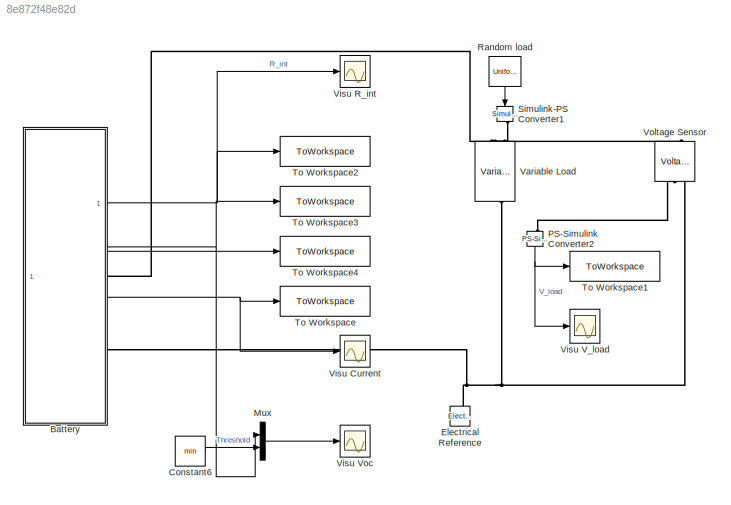
MODEL slx_8e872f48e82d
KIND model
CONFIG AbsTol = auto
CONFIG EnableMultiTasking = off
CONFIG FixedStep = auto
CONFIG MaxStep = auto
CONFIG MinStep = auto
CONFIG RelTol = 1e-3
CONFIG SampleTimeConstraint = Unconstrained
CONFIG SolverName = VariableStepAuto
CONFIG StartTime = 0.0
CONFIG StopTime = Tf*n
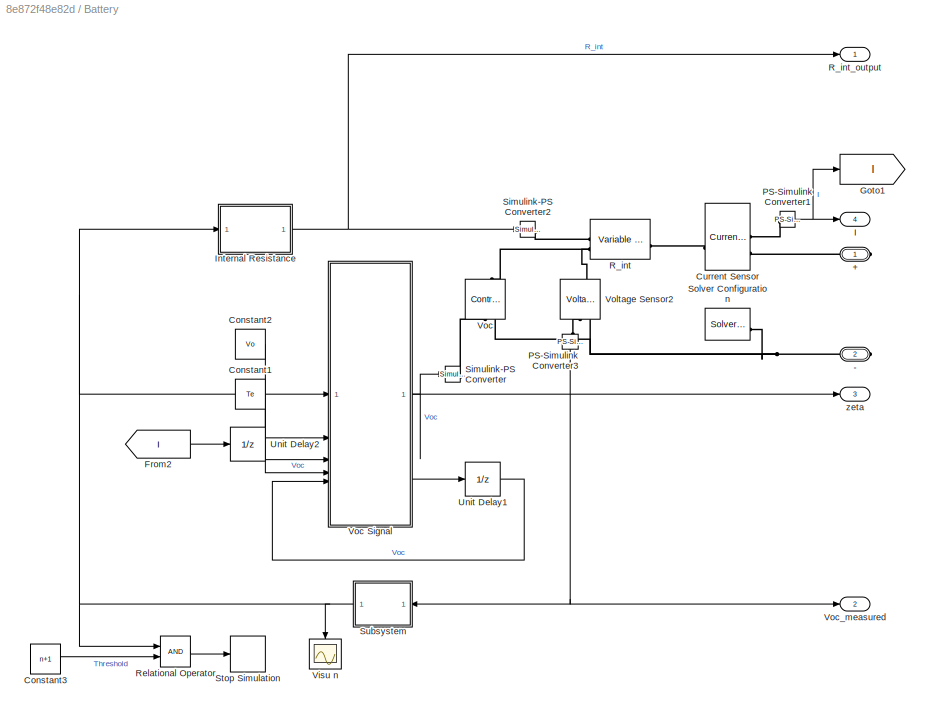
BLOCK [SubSystem] Battery
BLOCK [PMIOPort] Battery/+
  Side = Right
BLOCK [PMIOPort] Battery/-
  Port = 2
  Side = Right
BLOCK [Constant] Battery/Constant1
  Value = Te
BLOCK [Constant] Battery/Constant2
  Value = Vo
BLOCK [Constant] Battery/Constant3
  Value = n+1
BLOCK [Reference] Battery/Current Sensor  REF=fl_lib/Electrical/Electrical Sensors/Current Sensor
  SourceBlock = fl_lib/Electrical/Electrical Sensors/Current Sensor
  SourceType = Current Sensor
BLOCK [From] Battery/From2
  GotoTag = I
BLOCK [Goto] Battery/Goto1
  GotoTag = I
BLOCK [Outport] Battery/I
  Port = 4
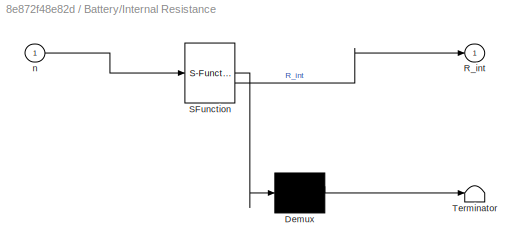
BLOCK [SubSystem] Battery/Internal Resistance
  ErrorFcn = Stateflow.Translate.translate
  LibrarySourceBlock = simulink/User-Defined\nFunctions/MATLAB Function
  PermitHierarchicalResolution = ExplicitOnly
  SFBlockType = MATLAB Function
  TreatAsAtomicUnit = on
BLOCK [Demux] Battery/Internal Resistance/ Demux 
  Outputs = 1
BLOCK [S-Function] Battery/Internal Resistance/ SFunction 
  EnableBusSupport = on
  FunctionName = sf_sfun
  PortCounts = [1 2]
  SFcnIsStateOwnerBlock = off
  SFunctionDeploymentMode = off
  Tag = Stateflow S-Function 2
BLOCK [Terminator] Battery/Internal Resistance/ Terminator 
BLOCK [Outport] Battery/Internal Resistance/R_int
BLOCK [Inport] Battery/Internal Resistance/n
BLOCK [Reference] Battery/PS-Simulink Converter1  REF=nesl_utility/PS-Simulink
Converter
  SourceBlock = nesl_utility/PS-Simulink\nConverter
  SourceType = PS-Simulink\nConverter
BLOCK [Reference] Battery/PS-Simulink Converter3  REF=nesl_utility/PS-Simulink
Converter
  NameLocation = left
  SourceBlock = nesl_utility/PS-Simulink\nConverter
  SourceType = PS-Simulink\nConverter
BLOCK [Reference] Battery/R_int  REF=fl_lib/Electrical/Electrical Elements/Variable Resistor
  SourceBlock = fl_lib/Electrical/Electrical Elements/Variable Resistor
  SourceType = Variable Resistor
BLOCK [Outport] Battery/R_int_output
BLOCK [RelationalOperator] Battery/Relational Operator
  InputSameDT = off
  OutDataTypeStr = boolean
  RndMeth = Simplest
BLOCK [Reference] Battery/Simulink-PS Converter  REF=nesl_utility/Simulink-PS
Converter
  SourceBlock = nesl_utility/Simulink-PS\nConverter
  SourceType = Simulink-PS\nConverter
BLOCK [Reference] Battery/Simulink-PS Converter2  REF=nesl_utility/Simulink-PS
Converter
  SourceBlock = nesl_utility/Simulink-PS\nConverter
  SourceType = Simulink-PS\nConverter
BLOCK [Reference] Battery/Solver Configuration  REF=nesl_utility/Solver
Configuration
  SourceBlock = nesl_utility/Solver\nConfiguration
  SourceType = Solver\nConfiguration
BLOCK [Stop] Battery/Stop Simulation
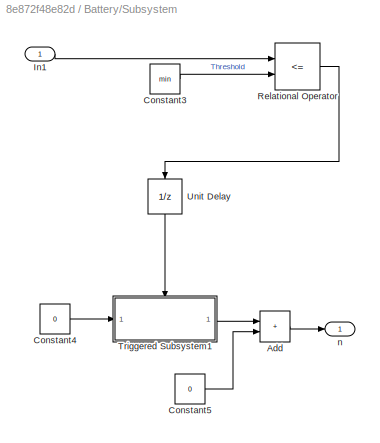
BLOCK [SubSystem] Battery/Subsystem
  NameLocation = top
BLOCK [Sum] Battery/Subsystem/Add
  IconShape = rectangular
BLOCK [Constant] Battery/Subsystem/Constant3
  Value = min
BLOCK [Constant] Battery/Subsystem/Constant4
  Value = 0
BLOCK [Constant] Battery/Subsystem/Constant5
  Value = 0
BLOCK [Inport] Battery/Subsystem/In1
BLOCK [RelationalOperator] Battery/Subsystem/Relational Operator
  InputSameDT = off
  Operator = <=
  OutDataTypeStr = boolean
  RndMeth = Simplest
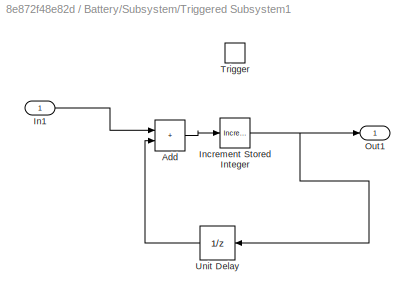
BLOCK [SubSystem] Battery/Subsystem/Triggered Subsystem1
  TreatAsAtomicUnit = on
BLOCK [Sum] Battery/Subsystem/Triggered Subsystem1/Add
  IconShape = rectangular
BLOCK [Inport] Battery/Subsystem/Triggered Subsystem1/In1
  LockScale = on
  OutDataTypeStr = double
BLOCK [Reference] Battery/Subsystem/Triggered Subsystem1/Increment Stored Integer  REF=simulink/Additional Math
& Discrete/Additional Math:
Increment - Decrement/Increment
Stored Integer
  SourceBlock = simulink/Additional Math\n& Discrete/Additional Math:\nIncrement - Decrement/Increment\nStored Integer
  SourceType = Stored Integer Value Increment
BLOCK [Outport] Battery/Subsystem/Triggered Subsystem1/Out1
BLOCK [TriggerPort] Battery/Subsystem/Triggered Subsystem1/Trigger
  StatesWhenEnabling = held
  VariantControl = (inherit)
BLOCK [UnitDelay] Battery/Subsystem/Triggered Subsystem1/Unit Delay
  HasFrameUpgradeWarning = on
  NameLocation = top
  SampleTime = -1
BLOCK [UnitDelay] Battery/Subsystem/Unit Delay
  HasFrameUpgradeWarning = on
  NameLocation = left
  SampleTime = -1
BLOCK [Outport] Battery/Subsystem/n
BLOCK [UnitDelay] Battery/Unit Delay1
  HasFrameUpgradeWarning = on
  SampleTime = -1
BLOCK [UnitDelay] Battery/Unit Delay2
  HasFrameUpgradeWarning = on
  SampleTime = -1
BLOCK [Scope] Battery/Visu n
  Floating = off
  NameLocation = left
  NumInputPorts = 1
  ScopeSpecificationString = Simulink.scopes.TimeScopeBlockCfg('CurrentConfiguration', extmgr.ConfigurationSet(extmgr.Configuration('Core','General UI',true),extmgr.Configuration('Core','Source UI',true),extmgr.Configuration('Sources','WiredSimulink',true,'DataLoggingVariableName','ScopeData2'),extmgr.Configuration('Visuals','Time Domain',true,'SerializedDisplays',{struct('MinYLimReal','-25.00000','MaxYLimReal','225.00000','Y...<+1380ch>
BLOCK [Reference] Battery/Voc  REF=fl_lib/Electrical/Electrical Sources/Controlled Voltage
Source
  NameLocation = right
  SourceBlock = fl_lib/Electrical/Electrical Sources/Controlled Voltage\nSource
  SourceType = Controlled Voltage\nSource
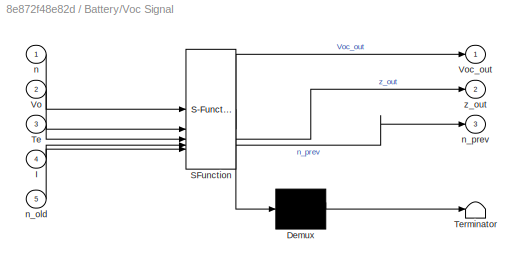
BLOCK [SubSystem] Battery/Voc Signal
  ErrorFcn = Stateflow.Translate.translate
  LibrarySourceBlock = simulink/User-Defined\nFunctions/MATLAB Function
  PermitHierarchicalResolution = ExplicitOnly
  SFBlockType = MATLAB Function
  TreatAsAtomicUnit = on
BLOCK [Demux] Battery/Voc Signal/ Demux 
  Outputs = 1
BLOCK [S-Function] Battery/Voc Signal/ SFunction 
  EnableBusSupport = on
  FunctionName = sf_sfun
  PortCounts = [5 4]
  SFcnIsStateOwnerBlock = off
  SFunctionDeploymentMode = off
  Tag = Stateflow S-Function 1
BLOCK [Terminator] Battery/Voc Signal/ Terminator 
BLOCK [Inport] Battery/Voc Signal/I
  Port = 4
BLOCK [Inport] Battery/Voc Signal/Te
  Port = 3
BLOCK [Inport] Battery/Voc Signal/Vo
  Port = 2
BLOCK [Outport] Battery/Voc Signal/Voc_out
BLOCK [Inport] Battery/Voc Signal/n
BLOCK [Inport] Battery/Voc Signal/n_old
  Port = 5
BLOCK [Outport] Battery/Voc Signal/n_prev
  Port = 3
BLOCK [Outport] Battery/Voc Signal/z_out
  Port = 2
BLOCK [Outport] Battery/Voc_measured
  Port = 2
BLOCK [Reference] Battery/Voltage Sensor2  REF=fl_lib/Electrical/Electrical Sensors/Voltage Sensor
  NameLocation = right
  SourceBlock = fl_lib/Electrical/Electrical Sensors/Voltage Sensor
  SourceType = Voltage Sensor
BLOCK [Outport] Battery/zeta
  Port = 3
BLOCK [Constant] Constant6
  Value = min
BLOCK [Reference] Electrical Reference  REF=fl_lib/Electrical/Electrical Elements/Electrical Reference
  LibrarySourceBlock = ee_lib/Connectors &\nReferences/Electrical Reference
  NameLocation = right
  SourceBlock = fl_lib/Electrical/Electrical Elements/Electrical Reference
  SourceType = Electrical Reference
BLOCK [Mux] Mux
  DisplayOption = bar
  Inputs = 2
BLOCK [Reference] PS-Simulink Converter2  REF=nesl_utility/PS-Simulink
Converter
  NameLocation = left
  SourceBlock = nesl_utility/PS-Simulink\nConverter
  SourceType = PS-Simulink\nConverter
BLOCK [UniformRandomNumber] Random load
  Maximum = 5
  Minimum = 3
  NameLocation = right
  SampleTime = 0.1
  Seed = randi(100)
BLOCK [Reference] Simulink-PS Converter1  REF=nesl_utility/Simulink-PS
Converter
  NameLocation = left
  SourceBlock = nesl_utility/Simulink-PS\nConverter
  SourceType = Simulink-PS\nConverter
BLOCK [ToWorkspace] To Workspace
  FixptAsFi = on
  MaxDataPoints = inf
  SampleTime = -1
  SaveFormat = Structure With Time
  VariableName = I
BLOCK [ToWorkspace] To Workspace1
  FixptAsFi = on
  MaxDataPoints = inf
  SampleTime = -1
  SaveFormat = Structure With Time
  VariableName = V
BLOCK [ToWorkspace] To Workspace2
  FixptAsFi = on
  MaxDataPoints = inf
  SampleTime = -1
  SaveFormat = Structure With Time
  VariableName = R_int
BLOCK [ToWorkspace] To Workspace3
  FixptAsFi = on
  MaxDataPoints = inf
  SampleTime = -1
  SaveFormat = Structure With Time
  VariableName = Voc
BLOCK [ToWorkspace] To Workspace4
  FixptAsFi = on
  MaxDataPoints = inf
  SampleTime = -1
  SaveFormat = Structure With Time
  VariableName = Zeta
BLOCK [Reference] Variable Load  REF=fl_lib/Electrical/Electrical Elements/Variable Resistor
  NameLocation = left
  SourceBlock = fl_lib/Electrical/Electrical Elements/Variable Resistor
  SourceType = Variable Resistor
BLOCK [Scope] Visu Current
  Floating = off
  NumInputPorts = 1
  ScopeSpecificationString = Simulink.scopes.TimeScopeBlockCfg('CurrentConfiguration', extmgr.ConfigurationSet(extmgr.Configuration('Core','General UI',true),extmgr.Configuration('Core','Source UI',true),extmgr.Configuration('Sources','WiredSimulink',true),extmgr.Configuration('Visuals','Time Domain',true,'SerializedDisplays',{struct('MinYLimReal','0.41734','MaxYLimReal','1.76253','YLabelReal','','MinYLimMag','0.41734','MaxYL...<+1319ch>
BLOCK [Scope] Visu R_int
  Floating = off
  NumInputPorts = 1
  ScopeSpecificationString = Simulink.scopes.TimeScopeBlockCfg('CurrentConfiguration', extmgr.ConfigurationSet(extmgr.Configuration('Core','General UI',true),extmgr.Configuration('Core','Source UI',true),extmgr.Configuration('Sources','WiredSimulink',true,'DataLoggingVariableName','ScopeData1'),extmgr.Configuration('Visuals','Time Domain',true,'SerializedDisplays',{struct('MinYLimReal','0.05998','MaxYLimReal','0.06019','YLabe...<+1430ch>
BLOCK [Scope] Visu V_load
  Floating = off
  NameLocation = right
  NumInputPorts = 1
  ScopeSpecificationString = Simulink.scopes.TimeScopeBlockCfg('CurrentConfiguration', extmgr.ConfigurationSet(extmgr.Configuration('Core','General UI',true),extmgr.Configuration('Core','Source UI',true),extmgr.Configuration('Sources','WiredSimulink',true,'DataLoggingVariableName','simu_data','DataLogging',true,'DataLoggingSaveFormat','StructureWithTime'),extmgr.Configuration('Visuals','Time Domain',true,'SerializedDisplays',...<+1821ch>
BLOCK [Scope] Visu Voc
  Floating = off
  NumInputPorts = 1
  ScopeSpecificationString = Simulink.scopes.TimeScopeBlockCfg('CurrentConfiguration', extmgr.ConfigurationSet(extmgr.Configuration('Core','General UI',true),extmgr.Configuration('Core','Source UI',true),extmgr.Configuration('Sources','WiredSimulink',true,'DataLoggingVariableName','ScopeData1'),extmgr.Configuration('Visuals','Time Domain',true,'SerializedDisplays',{struct('MinYLimReal','2.52499','MaxYLimReal','5.275','YLabelR...<+1456ch>
BLOCK [Reference] Voltage Sensor  REF=fl_lib/Electrical/Electrical Sensors/Voltage Sensor
  NameLocation = right
  SourceBlock = fl_lib/Electrical/Electrical Sensors/Voltage Sensor
  SourceType = Voltage Sensor
LINE Battery/Constant1:1 -> Battery/Voc Signal:3
LINE Battery/Constant2:1 -> Battery/Voc Signal:2
LINE Battery/Constant3:1 -> Battery/Relational Operator:2
LINE Battery/From2:1 -> Battery/Unit Delay2:1
NET Battery/Internal Resistance:1 -> Battery/R_int_output:1, Battery/Simulink-PS Converter2:1
NET Battery/PS-Simulink Converter1:1 -> Battery/Goto1:1, Battery/I:1
NET Battery/PS-Simulink Converter3:1 -> Battery/Subsystem:1, Battery/Voc_measured:1
LINE Battery/Relational Operator:1 -> Battery/Stop Simulation:1
LINE Battery/Subsystem/Add:1 -> Battery/Subsystem/n:1
LINE Battery/Subsystem/Constant3:1 -> Battery/Subsystem/Relational Operator:2
LINE Battery/Subsystem/Constant4:1 -> Battery/Subsystem/Triggered Subsystem1:1
LINE Battery/Subsystem/Constant5:1 -> Battery/Subsystem/Add:2
LINE Battery/Subsystem/In1:1 -> Battery/Subsystem/Relational Operator:1
LINE Battery/Subsystem/Relational Operator:1 -> Battery/Subsystem/Unit Delay:1
LINE Battery/Subsystem/Triggered Subsystem1/Add:1 -> Battery/Subsystem/Triggered Subsystem1/Increment Stored Integer:1
LINE Battery/Subsystem/Triggered Subsystem1/In1:1 -> Battery/Subsystem/Triggered Subsystem1/Add:1
NET Battery/Subsystem/Triggered Subsystem1/Increment Stored Integer:1 -> Battery/Subsystem/Triggered Subsystem1/Out1:1, Battery/Subsystem/Triggered Subsystem1/Unit Delay:1
LINE Battery/Subsystem/Triggered Subsystem1/Unit Delay:1 -> Battery/Subsystem/Triggered Subsystem1/Add:2
LINE Battery/Subsystem/Triggered Subsystem1:1 -> Battery/Subsystem/Add:1
LINE Battery/Subsystem/Unit Delay:1 -> Battery/Subsystem/Triggered Subsystem1:trigger
NET Battery/Subsystem:1 -> Battery/Internal Resistance:1, Battery/Relational Operator:1, Battery/Visu n:1, Battery/Voc Signal:1
LINE Battery/Unit Delay1:1 -> Battery/Voc Signal:5
LINE Battery/Unit Delay2:1 -> Battery/Voc Signal:4
LINE Battery/Voc Signal:1 -> Battery/Simulink-PS Converter:1
LINE Battery/Voc Signal:2 -> Battery/zeta:1
LINE Battery/Voc Signal:3 -> Battery/Unit Delay1:1
NET Battery:1 -> To Workspace2:1, Visu R_int:1
NET Battery:2 -> Mux:1, To Workspace3:1
LINE Battery:3 -> To Workspace4:1
NET Battery:4 -> To Workspace:1, Visu Current:1
LINE Constant6:1 -> Mux:2
LINE Mux:1 -> Visu Voc:1
NET PS-Simulink Converter2:1 -> To Workspace1:1, Visu V_load:1
LINE Random load:1 -> Simulink-PS Converter1:1
PLINE Battery/+:RConn1 -- Battery/Current Sensor:RConn2
PNET net1: Battery/-:RConn1 -- Battery/Solver Configuration:RConn1 -- Battery/Voc:RConn2 -- Battery/Voltage Sensor2:RConn2
PLINE Battery/Current Sensor:LConn1 -- Battery/R_int:RConn1
PLINE Battery/Current Sensor:RConn1 -- Battery/PS-Simulink Converter1:LConn1
PLINE Battery/PS-Simulink Converter3:LConn1 -- Battery/Voltage Sensor2:RConn1
PLINE Battery/R_int:LConn1 -- Battery/Simulink-PS Converter2:RConn1
PNET net2: Battery/R_int:LConn2 -- Battery/Voc:LConn1 -- Battery/Voltage Sensor2:LConn1
PLINE Battery/Simulink-PS Converter:RConn1 -- Battery/Voc:RConn1
PNET net3: Battery:RConn1 -- Variable Load:LConn2 -- Voltage Sensor:LConn1
PNET net4: Battery:RConn2 -- Electrical Reference:LConn1 -- Variable Load:RConn1 -- Voltage Sensor:RConn2
PLINE PS-Simulink Converter2:LConn1 -- Voltage Sensor:RConn1
PLINE Simulink-PS Converter1:RConn1 -- Variable Load:LConn1
note: NET lines group one-source signal fan-out (src -> all destinations, sorted); 1:1 wires keep LINE; PNET lines group multi-terminal physical nets as a canonical sorted terminal list (undirected conserving connections); 2-terminal nets keep the pairwise PLINE form
CHART Battery/Voc
Signal states=1 transitions=1
  STATE_LABEL 'eML_blk_kernel()'
  STATE_LABEL 'SCRIPT:\nfunction [Voc_out, z_out, n_prev] = fcn(n, Vo, Te, I, n_old)\n    persistent z\n    persistent Voc\n\n    if isempty(n_old)\n        n_prev = 0;\n    end\n    \n    if n == n_old + 1\n        z = 100;\n        Voc = Vo;\n    end\n    \n\n    if isempty(z)\n        z = 100;\n    end\n\n    if isempty(Voc)\n        Voc = Vo;\n    end\n\n    \n    K1 = 0.07;\n    K2 = 0.7;\n\n\n    Cn = 2; %[Ah]\n    Cr = Cn - 0.1*n; %L...<+255ch>'
CHART Battery/Internal Resistance states=1 transitions=1
  STATE_LABEL 'eML_blk_kernel()'
  STATE_LABEL 'SCRIPT:\nfunction R_int = fcn(n)\n    R_int = 0.06 + 8.4375E-5*n;\nend'
CHART  states=0 transitions=0
CHART  states=0 transitions=0
